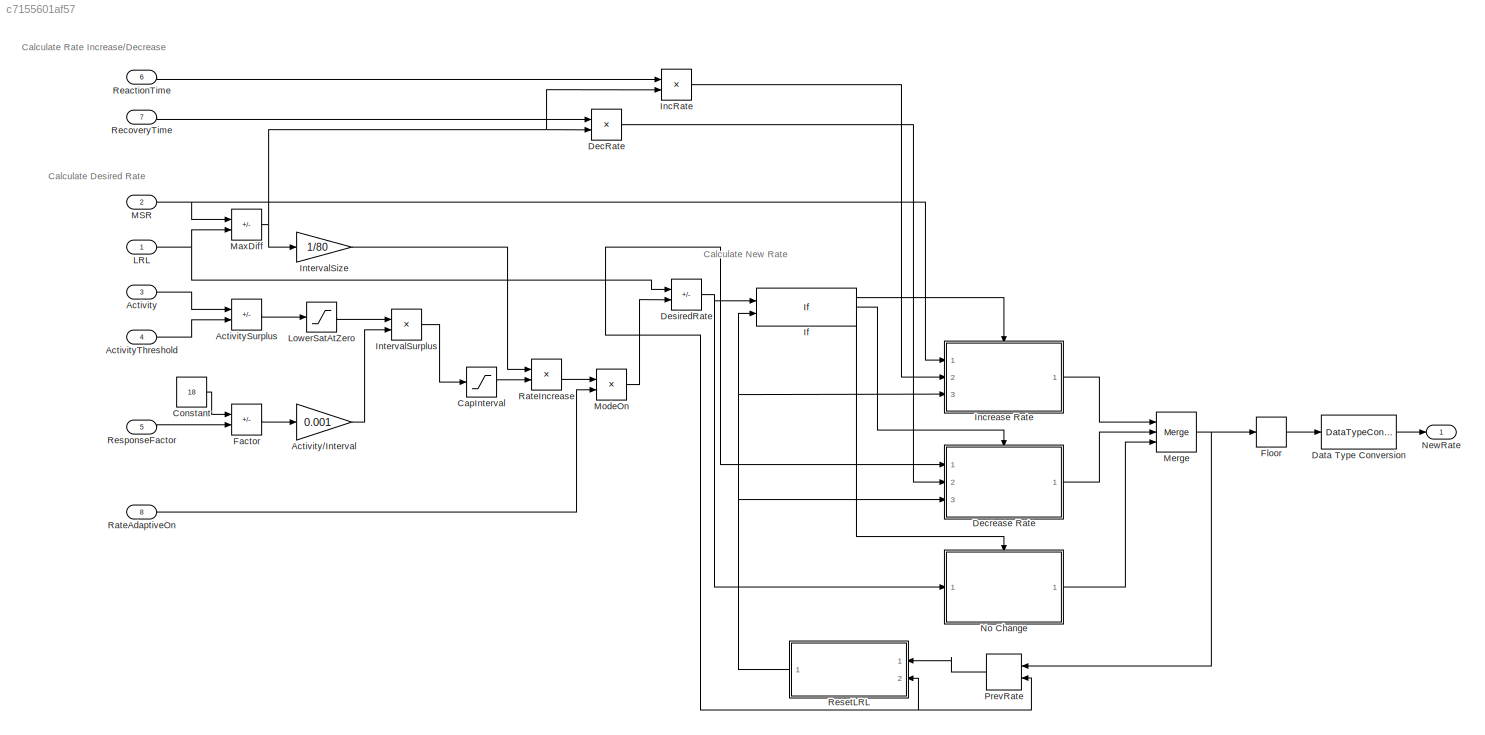
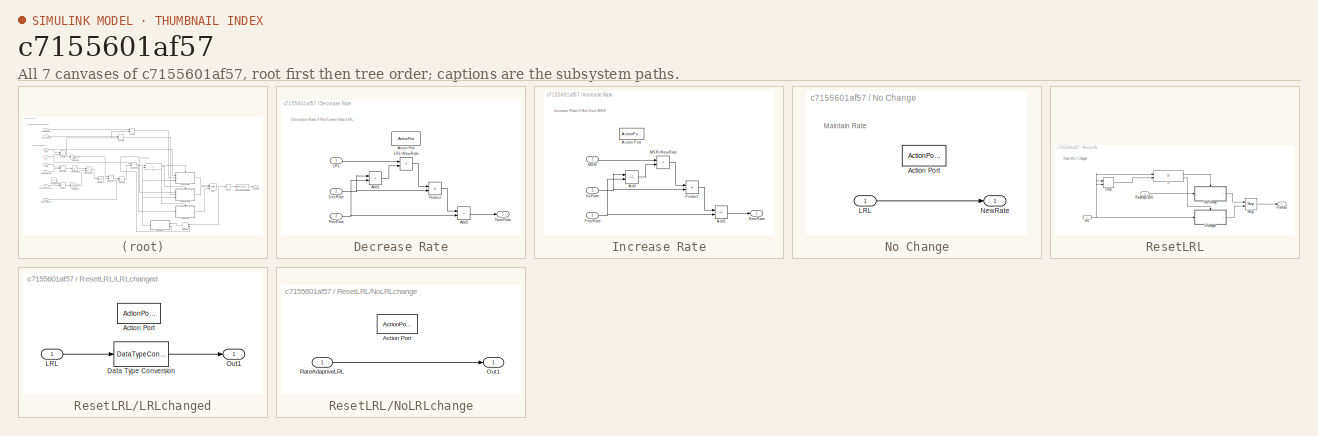
[diagram: thumbnail index - all 7 canvases of the model, root first then tree order]
MODEL slx_c7155601af57
KIND model
CONFIG AbsTol = auto
CONFIG EnableMultiTasking = on
CONFIG FixedStep = 1e-3
CONFIG MaxStep = auto
CONFIG MinStep = auto
CONFIG RelTol = 1e-3
CONFIG SampleTimeConstraint = Unconstrained
CONFIG Solver = FixedStepAuto
CONFIG SolverName = FixedStepAuto
CONFIG StartTime = 0.0
CONFIG StopTime = 10.0
BLOCK [Inport] Activity
  OutDataTypeStr = single
  Port = 3
BLOCK [Gain] Activity//Interval
  Gain = 0.001
  OutDataTypeStr = double
BLOCK [Sum] ActivitySurplus
  IconShape = rectangular
  Inputs = +-
  Ports = [2, 1]
BLOCK [Inport] ActivityThreshold
  OutDataTypeStr = single
  Port = 4
BLOCK [Saturate] CapInterval
  LowerLimit = 0
  UpperLimit = 80
BLOCK [Constant] Constant
  Value = 18
BLOCK [DataTypeConversion] Data Type Conversion
  OutDataTypeStr = uint16
  RndMeth = Floor
  SaturateOnIntegerOverflow = off
BLOCK [Product] DecRate
  Inputs = /*
  OutDataTypeStr = double
  Ports = [2, 1]
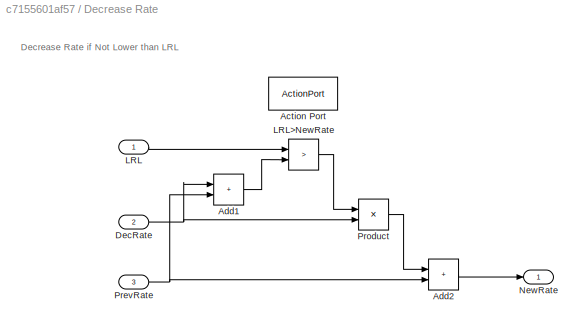
BLOCK [SubSystem] Decrease Rate
  Ports = [3, 1, 0, 0, 0, 0, 0, 1]
  RequestExecContextInheritance = off
  TreatAsAtomicUnit = on
BLOCK [ActionPort] Decrease Rate/Action Port
  ActionPortLabel = elseif(u1 > u2)
BLOCK [Sum] Decrease Rate/Add1
  IconShape = rectangular
  Ports = [2, 1]
BLOCK [Sum] Decrease Rate/Add2
  IconShape = rectangular
  Ports = [2, 1]
BLOCK [Inport] Decrease Rate/DecRate
  Port = 2
BLOCK [Inport] Decrease Rate/LRL
BLOCK [RelationalOperator] Decrease Rate/LRL>NewRate
  InputSameDT = off
  Operator = >
  OutDataTypeStr = boolean
  Ports = [2, 1]
  RndMeth = Simplest
BLOCK [Outport] Decrease Rate/NewRate
  OutDataTypeStr = double
BLOCK [Inport] Decrease Rate/PrevRate
  Port = 3
BLOCK [Product] Decrease Rate/Product
  Ports = [2, 1]
BLOCK [Sum] DesiredRate
  IconShape = rectangular
  Inputs = +-
  Ports = [2, 1]
BLOCK [Sum] Factor
  IconShape = rectangular
  Inputs = +-
  Ports = [2, 1]
BLOCK [Rounding] Floor
BLOCK [If] If
  ElseIfExpressions = u1 > u2
  IfExpression = u1 < u2
  NumInputs = 2
  Ports = [2, 3]
BLOCK [Product] IncRate
  Inputs = /*
  OutDataTypeStr = double
  Ports = [2, 1]
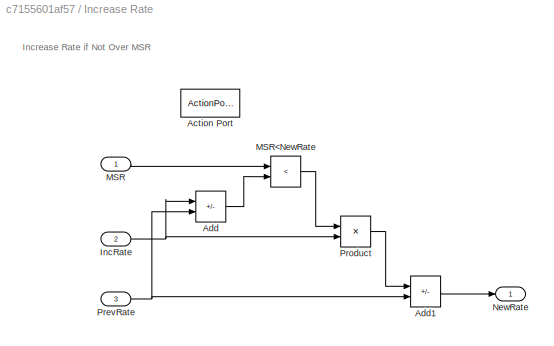
BLOCK [SubSystem] Increase Rate
  Ports = [3, 1, 0, 0, 0, 0, 0, 1]
  RequestExecContextInheritance = off
  TreatAsAtomicUnit = on
BLOCK [ActionPort] Increase Rate/Action Port
  ActionPortLabel = if(u1 < u2)
BLOCK [Sum] Increase Rate/Add
  IconShape = rectangular
  Inputs = -+
  Ports = [2, 1]
BLOCK [Sum] Increase Rate/Add1
  AccumDataTypeStr = double
  IconShape = rectangular
  Inputs = -+
  Ports = [2, 1]
BLOCK [Inport] Increase Rate/IncRate
  Port = 2
BLOCK [Inport] Increase Rate/MSR
BLOCK [RelationalOperator] Increase Rate/MSR<NewRate
  InputSameDT = off
  Operator = <
  OutDataTypeStr = boolean
  Ports = [2, 1]
  RndMeth = Simplest
BLOCK [Outport] Increase Rate/NewRate
BLOCK [Inport] Increase Rate/PrevRate
  Port = 3
BLOCK [Product] Increase Rate/Product
  Ports = [2, 1]
BLOCK [Gain] IntervalSize
  Gain = 1/80
  OutDataTypeStr = double
BLOCK [Product] IntervalSurplus
  Inputs = */
  OutDataTypeStr = double
  Ports = [2, 1]
BLOCK [Inport] LRL
  OutDataTypeStr = uint16
  Unit = ms
BLOCK [Saturate] LowerSatAtZero
  LowerLimit = 0
  UpperLimit = inf
BLOCK [Inport] MSR
  OutDataTypeStr = uint16
  Port = 2
  Unit = ms
BLOCK [Sum] MaxDiff
  IconShape = rectangular
  Inputs = -+
  Ports = [2, 1]
BLOCK [Merge] Merge
  Inputs = 3
  Ports = [3, 1]
BLOCK [Product] ModeOn
  Inputs = **
  Ports = [2, 1]
BLOCK [Outport] NewRate
  OutDataTypeStr = uint16
BLOCK [SubSystem] No Change
  Ports = [1, 1, 0, 0, 0, 0, 0, 1]
  RequestExecContextInheritance = off
  TreatAsAtomicUnit = on
BLOCK [ActionPort] No Change/Action Port
  ActionPortLabel = else
BLOCK [Inport] No Change/LRL
BLOCK [Outport] No Change/NewRate
  OutDataTypeStr = double
BLOCK [Delay] PrevRate
  DelayLength = 1
  InitialConditionSource = Input port
  InputPortMap = u0,p4
  Ports = [2, 1]
BLOCK [Inport] RateAdaptiveOn
  OutDataTypeStr = uint8
  Port = 8
BLOCK [Product] RateIncrease
  Inputs = **
  OutDataTypeStr = double
  Ports = [2, 1]
BLOCK [Inport] ReactionTime
  OutDataTypeStr = uint16
  Port = 6
  Unit = ms
BLOCK [Inport] RecoveryTime
  OutDataTypeStr = uint16
  Port = 7
  Unit = ms
BLOCK [SubSystem] ResetLRL
  NameLocation = top
  Ports = [2, 1]
  RequestExecContextInheritance = off
  TreatAsAtomicUnit = on
BLOCK [Delay] ResetLRL/Delay
  DelayLength = 1
  InitialConditionSource = Input port
  InputPortMap = u0,p4
  Ports = [2, 1]
BLOCK [If] ResetLRL/If
  IfExpression = u1==u2
  NumInputs = 2
  Ports = [2, 2]
BLOCK [Inport] ResetLRL/LRL
  Port = 2
BLOCK [SubSystem] ResetLRL/LRLchanged
  Ports = [1, 1, 0, 0, 0, 0, 0, 1]
  RequestExecContextInheritance = off
  TreatAsAtomicUnit = on
BLOCK [ActionPort] ResetLRL/LRLchanged/Action Port
  ActionPortLabel = else
BLOCK [DataTypeConversion] ResetLRL/LRLchanged/Data Type Conversion
  OutDataTypeStr = double
  RndMeth = Floor
  SaturateOnIntegerOverflow = off
BLOCK [Inport] ResetLRL/LRLchanged/LRL
BLOCK [Outport] ResetLRL/LRLchanged/Out1
BLOCK [Merge] ResetLRL/Merge
  Ports = [2, 1]
BLOCK [SubSystem] ResetLRL/NoLRLchange
  Ports = [1, 1, 0, 0, 0, 0, 0, 1]
  RequestExecContextInheritance = off
  TreatAsAtomicUnit = on
BLOCK [ActionPort] ResetLRL/NoLRLchange/Action Port
  ActionPortLabel = if(u1==u2)
BLOCK [Outport] ResetLRL/NoLRLchange/Out1
BLOCK [Inport] ResetLRL/NoLRLchange/RateAdaptiveLRL
BLOCK [Outport] ResetLRL/PrevRate
BLOCK [Inport] ResetLRL/RateAdaptiveLRL
BLOCK [Inport] ResponseFactor
  OutDataTypeStr = uint8
  Port = 5
ANNOTATION (root): Calculate Desired Rate
ANNOTATION (root): Calculate New Rate
ANNOTATION (root): Calculate Rate Increase/Decrease
ANNOTATION Decrease Rate: Decrease Rate if Not Lower than LRL
ANNOTATION Increase Rate: Increase Rate if Not Over MSR
ANNOTATION No Change: Maintain Rate
ANNOTATION ResetLRL: Reset LRL if Changed
LINE Activity//Interval:1 -> IntervalSurplus:2
LINE Activity:1 -> ActivitySurplus:1
LINE ActivitySurplus:1 -> LowerSatAtZero:1
LINE ActivityThreshold:1 -> ActivitySurplus:2
LINE CapInterval:1 -> RateIncrease:2
LINE Constant:1 -> Factor:1
LINE Data Type Conversion:1 -> NewRate:1
LINE DecRate:1 -> Decrease Rate:2
LINE Decrease Rate/Add1:1 -> Decrease Rate/LRL>NewRate:2
LINE Decrease Rate/Add2:1 -> Decrease Rate/NewRate:1
NET Decrease Rate/DecRate:1 -> Decrease Rate/Add1:1, Decrease Rate/Product:2
LINE Decrease Rate/LRL:1 -> Decrease Rate/LRL>NewRate:1
LINE Decrease Rate/LRL>NewRate:1 -> Decrease Rate/Product:1
NET Decrease Rate/PrevRate:1 -> Decrease Rate/Add1:2, Decrease Rate/Add2:2
LINE Decrease Rate/Product:1 -> Decrease Rate/Add2:1
LINE Decrease Rate:1 -> Merge:2
NET DesiredRate:1 -> If:1, No Change:1
LINE Factor:1 -> Activity//Interval:1
LINE Floor:1 -> Data Type Conversion:1
LINE If:1 -> Increase Rate:ifaction
LINE If:2 -> Decrease Rate:ifaction
LINE If:3 -> No Change:ifaction
LINE IncRate:1 -> Increase Rate:2
LINE Increase Rate/Add1:1 -> Increase Rate/NewRate:1
LINE Increase Rate/Add:1 -> Increase Rate/MSR<NewRate:2
NET Increase Rate/IncRate:1 -> Increase Rate/Add:1, Increase Rate/Product:2
LINE Increase Rate/MSR:1 -> Increase Rate/MSR<NewRate:1
LINE Increase Rate/MSR<NewRate:1 -> Increase Rate/Product:1
NET Increase Rate/PrevRate:1 -> Increase Rate/Add1:2, Increase Rate/Add:2
LINE Increase Rate/Product:1 -> Increase Rate/Add1:1
LINE Increase Rate:1 -> Merge:1
LINE IntervalSize:1 -> RateIncrease:1
LINE IntervalSurplus:1 -> CapInterval:1
NET LRL:1 -> Decrease Rate:1, DesiredRate:1, MaxDiff:2, PrevRate:2, ResetLRL:2
LINE LowerSatAtZero:1 -> IntervalSurplus:1
NET MSR:1 -> Increase Rate:1, MaxDiff:1
NET MaxDiff:1 -> DecRate:2, IncRate:2, IntervalSize:1
NET Merge:1 -> Floor:1, PrevRate:1
LINE ModeOn:1 -> DesiredRate:2
LINE No Change/LRL:1 -> No Change/NewRate:1
LINE No Change:1 -> Merge:3
LINE PrevRate:1 -> ResetLRL:1
LINE RateAdaptiveOn:1 -> ModeOn:2
LINE RateIncrease:1 -> ModeOn:1
LINE ReactionTime:1 -> IncRate:1
LINE RecoveryTime:1 -> DecRate:1
LINE ResetLRL/Delay:1 -> ResetLRL/If:2
LINE ResetLRL/If:1 -> ResetLRL/NoLRLchange:ifaction
LINE ResetLRL/If:2 -> ResetLRL/LRLchanged:ifaction
NET ResetLRL/LRL:1 -> ResetLRL/Delay:1, ResetLRL/Delay:2, ResetLRL/If:1, ResetLRL/LRLchanged:1
LINE ResetLRL/LRLchanged/Data Type Conversion:1 -> ResetLRL/LRLchanged/Out1:1
LINE ResetLRL/LRLchanged/LRL:1 -> ResetLRL/LRLchanged/Data Type Conversion:1
LINE ResetLRL/LRLchanged:1 -> ResetLRL/Merge:2
LINE ResetLRL/Merge:1 -> ResetLRL/PrevRate:1
LINE ResetLRL/NoLRLchange/RateAdaptiveLRL:1 -> ResetLRL/NoLRLchange/Out1:1
LINE ResetLRL/NoLRLchange:1 -> ResetLRL/Merge:1
LINE ResetLRL/RateAdaptiveLRL:1 -> ResetLRL/NoLRLchange:1
NET ResetLRL:1 -> Decrease Rate:3, If:2, Increase Rate:3
LINE ResponseFactor:1 -> Factor:2
note: NET lines group one-source signal fan-out (src -> all destinations, sorted); 1:1 wires keep LINE
